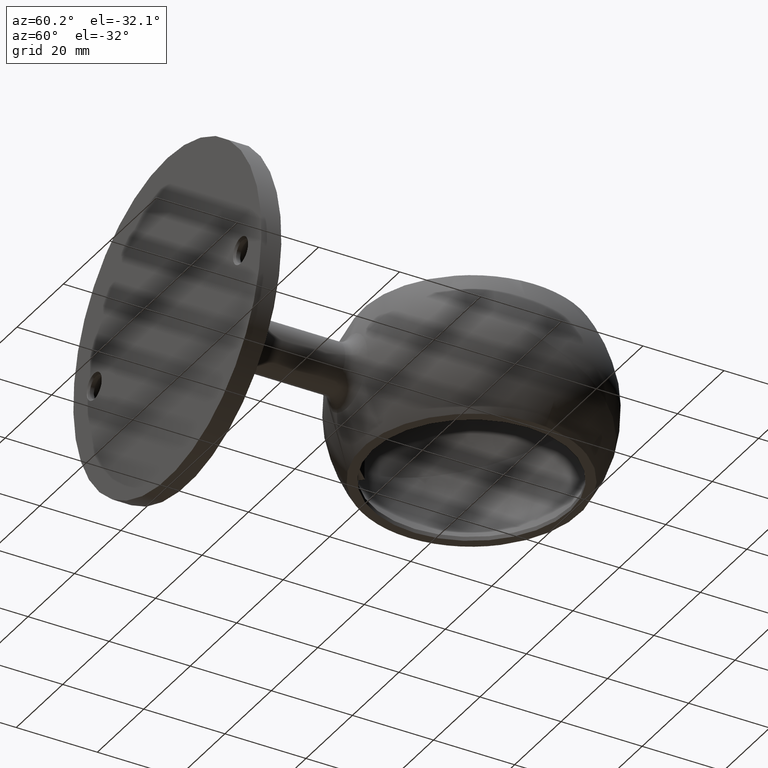
[diagram: clean part render]
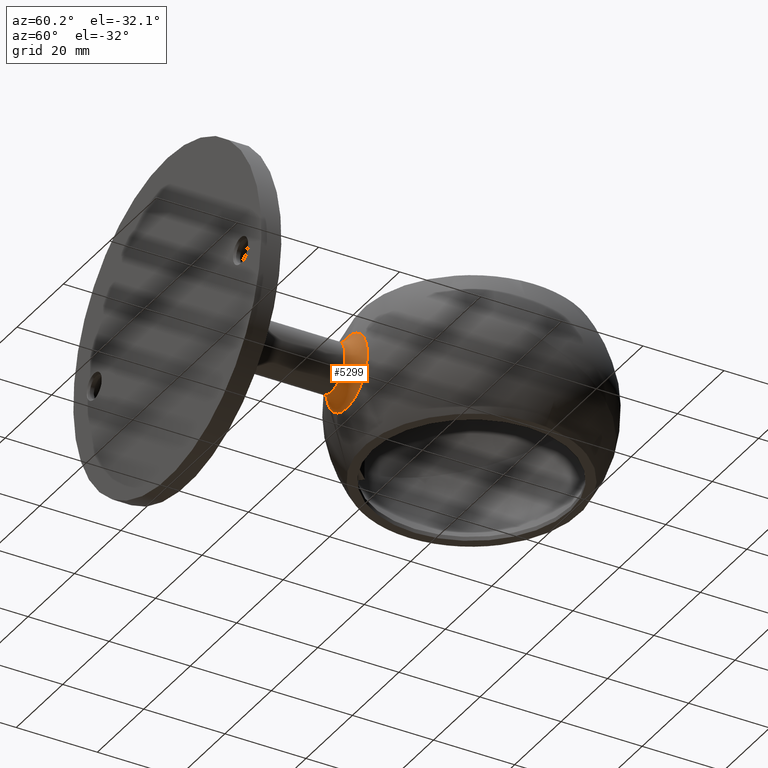
[diagram: same view with one face highlighted and labeled with its STEP entity id]
A machine part, auxiliary view. The second image highlights one B-rep face of the part: STEP entity #5299.
In plain terms, the highlighted toroidal blend (fillet) surface has major radius 10 mm and minor (blend) radius 4 mm.
Its self-contained STEP definition (entity closure, byte-faithful):
#60 = DIRECTION ( 'NONE',  ( 0.000000000000000000, 0.000000000000000000, 1.000000000000000000 ) ) ;
#554 = VERTEX_POINT ( 'NONE', #6076 ) ;
#2054 = DIRECTION ( 'NONE',  ( 0.000000000000000000, 0.000000000000000000, 1.000000000000000000 ) ) ;
#2090 = CARTESIAN_POINT ( 'NONE',  ( 0.000000000000000000, 44.25934850526039810, 8.888888888886198103 ) ) ;
#3150 = CARTESIAN_POINT ( 'NONE',  ( 0.000000000000000000, 40.41676706839325561, 0.000000000000000000 ) ) ;
#3607 = FACE_OUTER_BOUND ( 'NONE', #4279, .T. ) ;
#3619 = CARTESIAN_POINT ( 'NONE',  ( 0.000000000000000000, 40.41676706840747357, 0.000000000000000000 ) ) ;
#3995 = DIRECTION ( 'NONE',  ( -0.000000000000000000, -1.000000000000000000, -0.000000000000000000 ) ) ;
#4279 = EDGE_LOOP ( 'NONE', ( #8457 ) ) ;
#4718 = DIRECTION ( 'NONE',  ( 0.000000000000000000, 1.000000000000000000, 0.000000000000000000 ) ) ;
#5299 = ADVANCED_FACE ( 'NONE', ( #3607, #9592 ), #6907, .F. ) ;
#6076 = CARTESIAN_POINT ( 'NONE',  ( 0.000000000000000000, 40.41676706839325561, 6.000000000000000888 ) ) ;
#6311 = CIRCLE ( 'NONE', #7618, 6.000000000000000888 ) ;
#6366 = DIRECTION ( 'NONE',  ( 0.000000000000000000, 0.000000000000000000, 1.000000000000000000 ) ) ;
#6745 = AXIS2_PLACEMENT_3D ( 'NONE', #3619, #7554, #2054 ) ;
#6907 = TOROIDAL_SURFACE ( 'NONE', #6745, 10.00000000000000178, 4.000000000000000000 ) ;
#6992 = EDGE_LOOP ( 'NONE', ( #8222 ) ) ;
#7155 = CIRCLE ( 'NONE', #9170, 8.888888888886198103 ) ;
#7518 = VERTEX_POINT ( 'NONE', #2090 ) ;
#7554 = DIRECTION ( 'NONE',  ( 0.000000000000000000, 1.000000000000000000, 0.000000000000000000 ) ) ;
#7618 = AXIS2_PLACEMENT_3D ( 'NONE', #3150, #3995, #6366 ) ;
#8222 = ORIENTED_EDGE ( 'NONE', *, *, #9329, .F. ) ;
#8457 = ORIENTED_EDGE ( 'NONE', *, *, #9022, .F. ) ;
#9022 = EDGE_CURVE ( 'NONE', #554, #554, #6311, .T. ) ;
#9170 = AXIS2_PLACEMENT_3D ( 'NONE', #9476, #4718, #60 ) ;
#9329 = EDGE_CURVE ( 'NONE', #7518, #7518, #7155, .T. ) ;
#9476 = CARTESIAN_POINT ( 'NONE',  ( 0.000000000000000000, 44.25934850526039810, 0.000000000000000000 ) ) ;
#9592 = FACE_OUTER_BOUND ( 'NONE', #6992, .T. ) ;